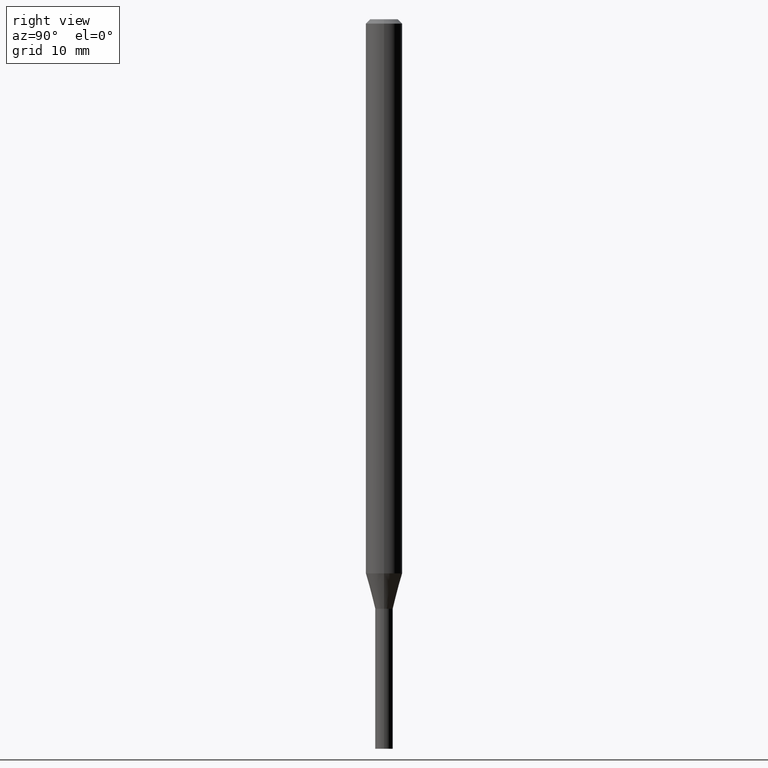
[diagram: clean part render]
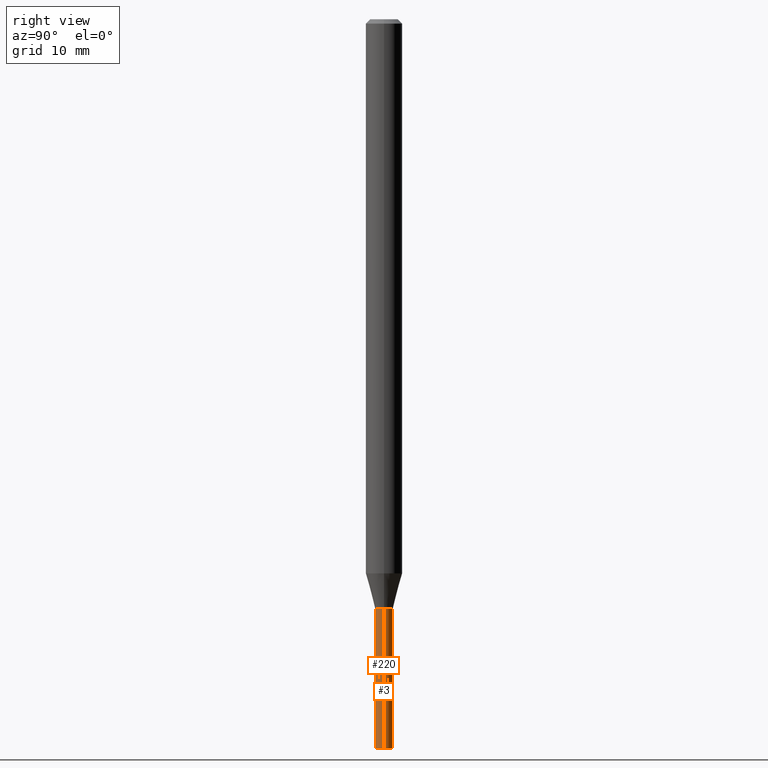
[diagram: same view with one multi-face feature highlighted, each face labeled with its STEP entity id]
A machine part, right view. The highlighted faces form ONE feature: a constant-radius fillet chain: 2 tangent blend faces with common blend radius 0.762 mm. The faces share edges in the B-rep.
Their STEP definitions:
[1] entity #220 (Cylinder):
#29 = VERTEX_POINT ( 'NONE', #70 ) ;
#34 = EDGE_CURVE ( 'NONE', #29, #248, #398, .T. ) ;
#45 = FACE_OUTER_BOUND ( 'NONE', #326, .T. ) ;
#62 = VERTEX_POINT ( 'NONE', #253 ) ;
#70 = CARTESIAN_POINT ( 'NONE',  ( -0.02999999999999999889, -7.677585005057479852E-15, -2.020000000000000018 ) ) ;
#75 = CIRCLE ( 'NONE', #404, 0.02999999999999999889 ) ;
#78 = EDGE_CURVE ( 'NONE', #465, #248, #297, .T. ) ;
#89 = VECTOR ( 'NONE', #258, 39.37007874015748143 ) ;
#100 = ORIENTED_EDGE ( 'NONE', *, *, #78, .T. ) ;
#103 = DIRECTION ( 'NONE',  ( -2.445468806185136597E-29, 3.491481338843145583E-15, 1.000000000000000000 ) ) ;
#123 = CYLINDRICAL_SURFACE ( 'NONE', #154, 0.02999999999999999889 ) ;
#134 = ORIENTED_EDGE ( 'NONE', *, *, #135, .F. ) ;
#135 = EDGE_CURVE ( 'NONE', #62, #29, #295, .T. ) ;
#144 = DIRECTION ( 'NONE',  ( 1.000000000000000000, -6.982962677686268288E-15, 0.000000000000000000 ) ) ;
#154 = AXIS2_PLACEMENT_3D ( 'NONE', #314, #434, #400 ) ;
#182 = CARTESIAN_POINT ( 'NONE',  ( 4.939846988493976284E-29, -7.052792304463154463E-15, -2.020000000000000018 ) ) ;
#209 = DIRECTION ( 'NONE',  ( -2.445468806185136597E-29, 3.491481338843145583E-15, 1.000000000000000000 ) ) ;
#211 = AXIS2_PLACEMENT_3D ( 'NONE', #182, #103, #144 ) ;
#220 = ADVANCED_FACE ( 'NONE', ( #45 ), #123, .T. ) ;
#244 = CARTESIAN_POINT ( 'NONE',  ( 0.02999999999999999889, -8.938192227438451682E-15, -2.500000000000000000 ) ) ;
#245 = ORIENTED_EDGE ( 'NONE', *, *, #34, .F. ) ;
#248 = VERTEX_POINT ( 'NONE', #441 ) ;
#253 = CARTESIAN_POINT ( 'NONE',  ( -0.02999999999999999889, -7.677585005057479852E-15, -2.500000000000000000 ) ) ;
#258 = DIRECTION ( 'NONE',  ( -2.445468806185136877E-29, 3.491481338843145188E-15, 1.000000000000000000 ) ) ;
#260 = CARTESIAN_POINT ( 'NONE',  ( 0.02999999999999999889, -2.094888803305880210E-16, 1.462853032738780878E-30 ) ) ;
#284 = ORIENTED_EDGE ( 'NONE', *, *, #385, .T. ) ;
#295 = LINE ( 'NONE', #431, #89 ) ;
#297 = LINE ( 'NONE', #260, #455 ) ;
#314 = CARTESIAN_POINT ( 'NONE',  ( 0.000000000000000000, 0.000000000000000000, 0.000000000000000000 ) ) ;
#326 = EDGE_LOOP ( 'NONE', ( #134, #284, #100, #245 ) ) ;
#379 = CARTESIAN_POINT ( 'NONE',  ( 6.113672015462842613E-29, -8.728703347107864943E-15, -2.500000000000000000 ) ) ;
#385 = EDGE_CURVE ( 'NONE', #62, #465, #75, .T. ) ;
#398 = CIRCLE ( 'NONE', #211, 0.02999999999999999889 ) ;
#399 = DIRECTION ( 'NONE',  ( -2.445468806185136877E-29, 3.491481338843145188E-15, 1.000000000000000000 ) ) ;
#400 = DIRECTION ( 'NONE',  ( 1.000000000000000000, -6.982962677686267499E-15, 4.876176775795936353E-29 ) ) ;
#404 = AXIS2_PLACEMENT_3D ( 'NONE', #379, #209, #460 ) ;
#431 = CARTESIAN_POINT ( 'NONE',  ( -0.02999999999999999889, 2.131628207280300479E-16, -1.475680527076471707E-30 ) ) ;
#434 = DIRECTION ( 'NONE',  ( -2.445468806185136597E-29, 3.491481338843145583E-15, 1.000000000000000000 ) ) ;
#441 = CARTESIAN_POINT ( 'NONE',  ( 0.02999999999999999889, -7.262281184793741991E-15, -2.020000000000000018 ) ) ;
#455 = VECTOR ( 'NONE', #399, 39.37007874015748143 ) ;
#460 = DIRECTION ( 'NONE',  ( 1.000000000000000000, -6.982962677686236734E-15, 0.000000000000000000 ) ) ;
#465 = VERTEX_POINT ( 'NONE', #244 ) ;
[2] entity #3 (Cylinder):
#3 = ADVANCED_FACE ( 'NONE', ( #33 ), #221, .T. ) ;
#29 = VERTEX_POINT ( 'NONE', #70 ) ;
#33 = FACE_OUTER_BOUND ( 'NONE', #459, .T. ) ;
#38 = DIRECTION ( 'NONE',  ( -2.445468806185136597E-29, 3.491481338843145583E-15, 1.000000000000000000 ) ) ;
#41 = DIRECTION ( 'NONE',  ( 1.000000000000000000, -6.982962677686268288E-15, 0.000000000000000000 ) ) ;
#62 = VERTEX_POINT ( 'NONE', #253 ) ;
#65 = ORIENTED_EDGE ( 'NONE', *, *, #78, .F. ) ;
#70 = CARTESIAN_POINT ( 'NONE',  ( -0.02999999999999999889, -7.677585005057479852E-15, -2.020000000000000018 ) ) ;
#78 = EDGE_CURVE ( 'NONE', #465, #248, #297, .T. ) ;
#89 = VECTOR ( 'NONE', #258, 39.37007874015748143 ) ;
#104 = EDGE_CURVE ( 'NONE', #465, #62, #184, .T. ) ;
#105 = DIRECTION ( 'NONE',  ( 1.000000000000000000, -6.982962677686267499E-15, 4.876176775795936353E-29 ) ) ;
#135 = EDGE_CURVE ( 'NONE', #62, #29, #295, .T. ) ;
#184 = CIRCLE ( 'NONE', #443, 0.02999999999999999889 ) ;
#188 = CARTESIAN_POINT ( 'NONE',  ( 0.000000000000000000, 0.000000000000000000, 0.000000000000000000 ) ) ;
#218 = CIRCLE ( 'NONE', #335, 0.02999999999999999889 ) ;
#221 = CYLINDRICAL_SURFACE ( 'NONE', #298, 0.02999999999999999889 ) ;
#233 = CARTESIAN_POINT ( 'NONE',  ( 4.939846988493976284E-29, -7.052792304463154463E-15, -2.020000000000000018 ) ) ;
#244 = CARTESIAN_POINT ( 'NONE',  ( 0.02999999999999999889, -8.938192227438451682E-15, -2.500000000000000000 ) ) ;
#248 = VERTEX_POINT ( 'NONE', #441 ) ;
#253 = CARTESIAN_POINT ( 'NONE',  ( -0.02999999999999999889, -7.677585005057479852E-15, -2.500000000000000000 ) ) ;
#258 = DIRECTION ( 'NONE',  ( -2.445468806185136877E-29, 3.491481338843145188E-15, 1.000000000000000000 ) ) ;
#260 = CARTESIAN_POINT ( 'NONE',  ( 0.02999999999999999889, -2.094888803305880210E-16, 1.462853032738780878E-30 ) ) ;
#295 = LINE ( 'NONE', #431, #89 ) ;
#296 = EDGE_CURVE ( 'NONE', #248, #29, #218, .T. ) ;
#297 = LINE ( 'NONE', #260, #455 ) ;
#298 = AXIS2_PLACEMENT_3D ( 'NONE', #188, #395, #105 ) ;
#307 = ORIENTED_EDGE ( 'NONE', *, *, #104, .T. ) ;
#330 = CARTESIAN_POINT ( 'NONE',  ( 6.113672015462842613E-29, -8.728703347107864943E-15, -2.500000000000000000 ) ) ;
#335 = AXIS2_PLACEMENT_3D ( 'NONE', #233, #372, #41 ) ;
#356 = ORIENTED_EDGE ( 'NONE', *, *, #135, .T. ) ;
#372 = DIRECTION ( 'NONE',  ( -2.445468806185136597E-29, 3.491481338843145583E-15, 1.000000000000000000 ) ) ;
#395 = DIRECTION ( 'NONE',  ( -2.445468806185136597E-29, 3.491481338843145583E-15, 1.000000000000000000 ) ) ;
#399 = DIRECTION ( 'NONE',  ( -2.445468806185136877E-29, 3.491481338843145188E-15, 1.000000000000000000 ) ) ;
#408 = ORIENTED_EDGE ( 'NONE', *, *, #296, .F. ) ;
#427 = DIRECTION ( 'NONE',  ( 1.000000000000000000, -6.982962677686236734E-15, 0.000000000000000000 ) ) ;
#431 = CARTESIAN_POINT ( 'NONE',  ( -0.02999999999999999889, 2.131628207280300479E-16, -1.475680527076471707E-30 ) ) ;
#441 = CARTESIAN_POINT ( 'NONE',  ( 0.02999999999999999889, -7.262281184793741991E-15, -2.020000000000000018 ) ) ;
#443 = AXIS2_PLACEMENT_3D ( 'NONE', #330, #38, #427 ) ;
#455 = VECTOR ( 'NONE', #399, 39.37007874015748143 ) ;
#459 = EDGE_LOOP ( 'NONE', ( #307, #356, #408, #65 ) ) ;
#465 = VERTEX_POINT ( 'NONE', #244 ) ;